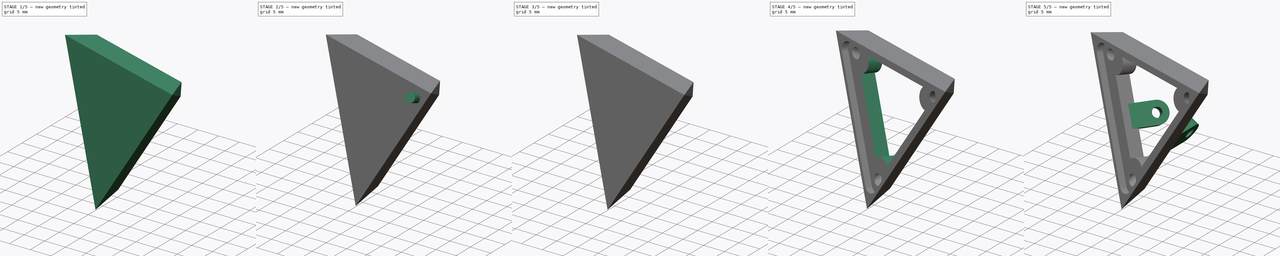
[diagram: build sequence overview — one tinted view per stage of 5, left to right]
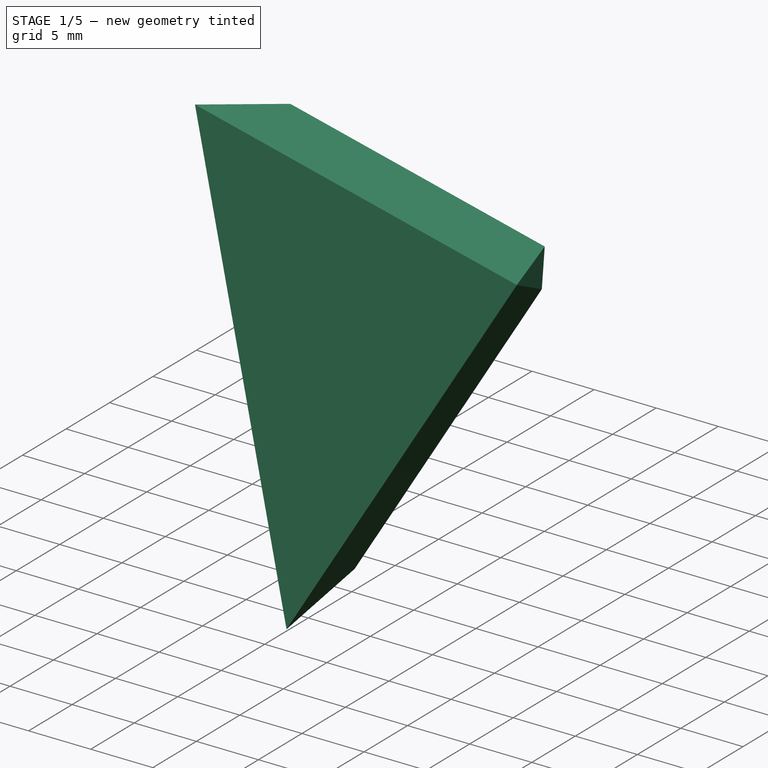
[diagram: stage 1 of 5 — iso view after this stage's code; geometry added in this stage tinted green]
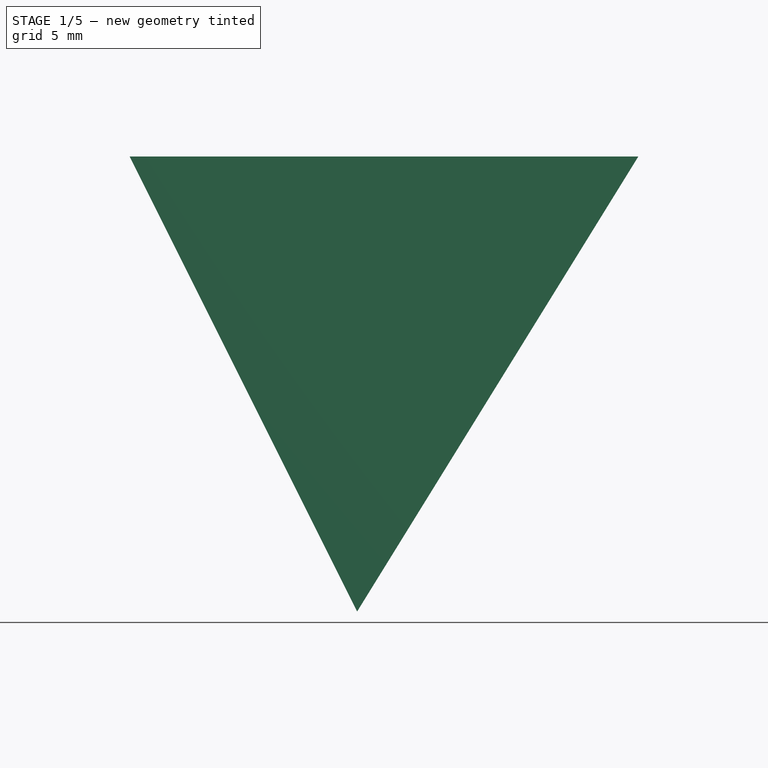
[diagram: stage 1 of 5 — front view after this stage's code; geometry added in this stage tinted green]
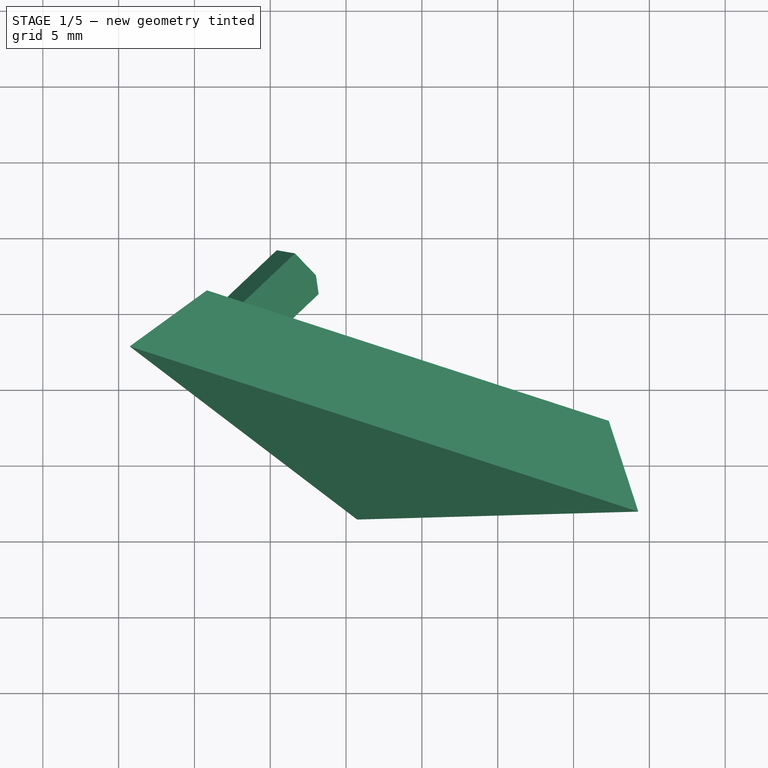
[diagram: stage 1 of 5 — top view after this stage's code; geometry added in this stage tinted green]
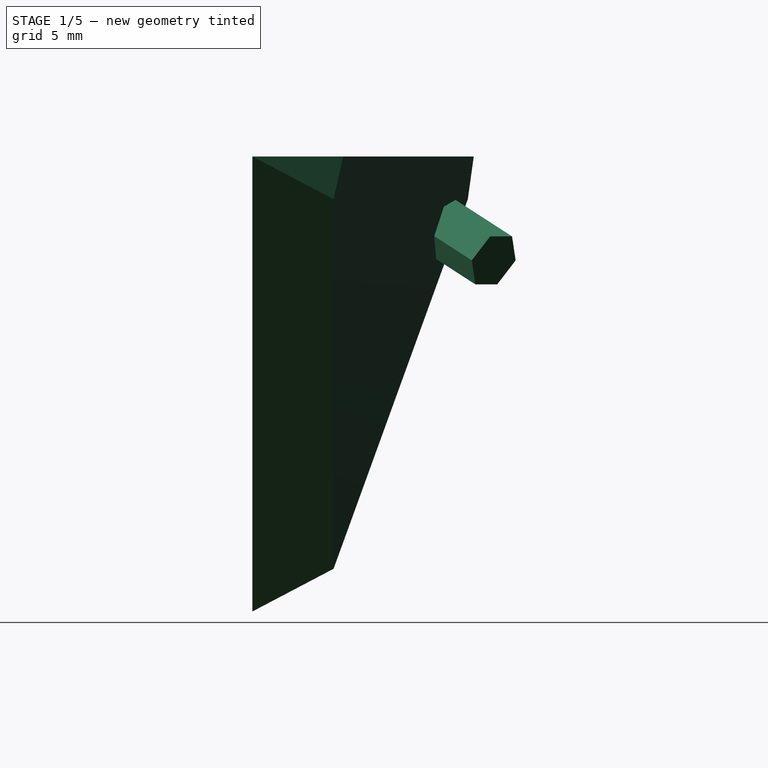
[diagram: stage 1 of 5 — right view after this stage's code; geometry added in this stage tinted green]
FCSTD DOCUMENT  (FreeCAD 0.19R24291 (Git))
Label: base
License: All rights reserved
LicenseURL: http://en.wikipedia.org/wiki/All_rights_reserved
objects: Part::Part2DObjectPython×16, Part::Feature×15, Part::FeaturePython×7, Part::Cut×7, Part::Extrusion×5, Sketcher::SketchObject×4, Part::Compound×2, PartDesign::CoordinateSystem×2, App::DocumentObjectGroup×1, Part::MultiCommon×1, Part::Box×1, Part::Cylinder×1, Part::RegularPolygon×1, Part::MultiFuse×1, PartDesign::FeatureBase×1, PartDesign::Body×1
note: 64 computed .brp shape members not serialized (recipe doc carries the construction recipe); baked Part::Feature solids carry a one-line shape summary decoded from their .brp

FEATURE [Part::FeaturePython] Point  # WARN: FeaturePython — macro-defined, semantics opaque (R4)
  X = 0
  Y = 0
  Z = 0
FEATURE [Part::Part2DObjectPython] Polygon  # Draft 2D object (typed FeaturePython)
  Area = 0
  ChamferSize = 0
  DrawMode = 0
  FacesNumber = 5
  FilletRadius = 0
  MakeFace = false
  Placement = pos=(0,0,15) rot=(0,0,1;0rad)
  Radius = 30
FEATURE [Part::Part2DObjectPython] Polygon001  # Draft 2D object (typed FeaturePython)
  Area = 0
  ChamferSize = 0
  DrawMode = 0
  FacesNumber = 5
  FilletRadius = 0
  MakeFace = false
  Placement = pos=(0,0,-15) rot=(0,0,1;3.14159rad)
  Radius = 30
FEATURE [Part::Part2DObjectPython] Line  # Draft 2D object (typed FeaturePython)
  Area = 0
  ChamferSize = 0
  Closed = false
  End = (-9.27051,-28.5317,-15)
  FilletRadius = 0
  Length = 35.2671
  MakeFace = false
  Placement = pos=(-24.2705,-17.6336,15) rot=(0,0,1;0rad)
  Points = (2) [(0,0,0),(15,-10.8981,-30)]
  Start = (-24.2705,-17.6336,15)
  Subdivisions = 0
FEATURE [Part::Part2DObjectPython] Line001  # Draft 2D object (typed FeaturePython)
  Area = 0
  ChamferSize = 0
  Closed = false
  End = (9.27051,-28.5317,15)
  FilletRadius = 0
  Length = 35.2671
  MakeFace = false
  Placement = pos=(-9.27051,-28.5317,-15) rot=(0,0,1;0rad)
  Points = (2) [(0,0,0),(18.541,-3.55271e-15,30)]
  Start = (-9.27051,-28.5317,-15)
  Subdivisions = 0
FEATURE [Part::Part2DObjectPython] Line002  # Draft 2D object (typed FeaturePython)
  Area = 0
  ChamferSize = 0
  Closed = false
  End = (24.2705,-17.6336,-15)
  FilletRadius = 0
  Length = 35.2671
  MakeFace = false
  Placement = pos=(9.27051,-28.5317,15) rot=(0,0,1;0rad)
  Points = (2) [(0,0,0),(15,10.8981,-30)]
  Start = (9.27051,-28.5317,15)
  Subdivisions = 0
FEATURE [Part::Part2DObjectPython] Line003  # Draft 2D object (typed FeaturePython)
  Area = 0
  ChamferSize = 0
  Closed = false
  End = (5e-16,0,15)
  FilletRadius = 0
  Length = 15
  MakeFace = false
  Placement = pos=(0,0,0) rot=(1,0,0;1.5708rad)
  Points = (2) [(0,0,0),(4.59243e-16,15,3.33067e-15)]
  Start = (0,0,0)
  Subdivisions = 0
FEATURE [Part::Part2DObjectPython] Line004  # Draft 2D object (typed FeaturePython)
  Area = 0
  ChamferSize = 0
  Closed = false
  End = (-5e-16,0,-15)
  FilletRadius = 0
  Length = 15
  MakeFace = false
  Placement = pos=(0,0,0) rot=(1,0,0;1.5708rad)
  Points = (2) [(0,0,0),(-4.59243e-16,-15,-3.33067e-15)]
  Start = (0,0,0)
  Subdivisions = 0
FEATURE [Part::Part2DObjectPython] Line005  # Draft 2D object (typed FeaturePython)
  Area = 0
  ChamferSize = 0
  Closed = false
  End = (0,0,15)
  FilletRadius = 0
  Length = 30
  MakeFace = false
  Placement = pos=(-24.2705,-17.6336,15) rot=(1,0,0;1.5708rad)
  Points = (2) [(0,0,0),(24.2705,3.55271e-15,-17.6336)]
  Start = (-24.2705,-17.6336,15)
  Subdivisions = 0
FEATURE [Part::Part2DObjectPython] Line006  # Draft 2D object (typed FeaturePython)
  Area = 0
  ChamferSize = 0
  Closed = false
  End = (9.27051,-28.5317,15)
  FilletRadius = 0
  Length = 30
  MakeFace = false
  Placement = pos=(0,0,15) rot=(1,0,0;1.5708rad)
  Points = (2) [(0,0,0),(9.27051,-7.10543e-15,28.5317)]
  Start = (0,0,15)
  Subdivisions = 0
FEATURE [Part::Part2DObjectPython] Line007  # Draft 2D object (typed FeaturePython)
  Area = 0
  ChamferSize = 0
  Closed = false
  End = (-9.27051,-28.5317,-15)
  FilletRadius = 0
  Length = 30
  MakeFace = false
  Placement = pos=(0,0,-15) rot=(1,0,0;1.5708rad)
  Points = (2) [(0,0,0),(-9.27051,-5.32907e-15,28.5317)]
  Start = (0,0,-15)
  Subdivisions = 0
FEATURE [Part::Part2DObjectPython] Line008  # Draft 2D object (typed FeaturePython)
  Area = 0
  ChamferSize = 0
  Closed = false
  End = (0,0,-15)
  FilletRadius = 0
  Length = 30
  MakeFace = false
  Placement = pos=(24.2705,-17.6336,-15) rot=(1,0,0;1.5708rad)
  Points = (2) [(0,0,0),(-24.2705,5.32907e-15,-17.6336)]
  Start = (24.2705,-17.6336,-15)
  Subdivisions = 0
FEATURE [Part::Feature] Face
  shape: bbox 45.15 x 37.38 x 2e-07 mm, 1 faces, 0 solids (baked)
FEATURE [Part::Feature] Face001
  shape: bbox 43.54 x 17.24 x 41.86 mm, 1 faces, 0 solids (baked)
FEATURE [Part::Feature] Face002
  shape: bbox 38.84 x 17.98 x 33 mm, 1 faces, 0 solids (baked)
FEATURE [Part::Feature] Face003
  shape: bbox 45.15 x 37.38 x 2e-07 mm, 1 faces, 0 solids (baked)
FEATURE [Part::Compound] Compound
  Links = -> [Face,Face003,Face001,Face002]
FEATURE [Part::FeaturePython] Array  # Draft array (typed FeaturePython)
  Angle = 360
  ArrayType = 1
  Axis = (0,0,1)
  Base = -> Compound
  Center = (0,0,15)
  Count = 5
  ExpandArray = false
  Fuse = false
  IntervalAxis = (0,0,0)
  IntervalX = (50,0,0)
  IntervalY = (0,50,0)
  IntervalZ = (0,0,50)
  NumberCircles = 3
  NumberPolar = 5
  NumberX = 2
  NumberY = 2
  NumberZ = 1
  PlacementList = 5 placements: [(0,0,0),(0,0,0),(0,0,1.77636e-15),(0,0,0),(0,0,0)]
  RadialDistance = 50
  ScaleList = (5) [(1,1,1),(1,1,1),(1,1,1),(1,1,1),(1,1,1)]
  Symmetry = 1
  TangentialDistance = 25
FEATURE [Part::Compound] Compound001
  Links = -> [Array]
FEATURE [Part::Feature] Shell
  shape: bbox 74.36 x 73 x 41.86 mm, 20 faces, 0 solids (baked)
FEATURE [Part::Feature] Solid
  shape: bbox 74.36 x 73 x 41.86 mm, 20 faces (baked)
FEATURE [Part::Feature] Face004
  shape: bbox 34.95 x 37.38 x 33 mm, 1 faces, 0 solids (baked)
FEATURE [Part::Feature] Face005
  shape: bbox 31.86 x 23.15 x 25.65 mm, 1 faces, 0 solids (baked)
FEATURE [Part::Feature] Face006
  shape: bbox 12.17 x 37.45 x 25.65 mm, 1 faces, 0 solids (baked)
FEATURE [Part::Feature] Face007
  shape: bbox 12.17 x 37.45 x 25.65 mm, 1 faces, 0 solids (baked)
FEATURE [Part::Feature] Face008
  shape: bbox 20.4 x 31.38 x 33 mm, 1 faces, 0 solids (baked)
FEATURE [Part::Feature] Face009
  shape: bbox 45.15 x 37.38 x 2e-07 mm, 1 faces, 0 solids (baked)
FEATURE [Part::Feature] Face010
  shape: bbox 38.84 x 17.98 x 33 mm, 1 faces, 0 solids (baked)
FEATURE [Part::Feature] Shell001
  shape: bbox 46.78 x 42.42 x 41.65 mm, 6 faces, 0 solids (baked)
FEATURE [Part::Feature] Solid001
  shape: bbox 46.78 x 42.42 x 41.65 mm, 6 faces (baked)
FEATURE [App::DocumentObjectGroup] Group  label="single_base_triangle_enclosure_elements"
  Group = -> [Face004,Face005,Face006,Face007,Face008,Face009,Face010,Shell001]
FEATURE [Part::MultiCommon] Common  label="single_base_triangle"
  Shapes = -> [Solid,Solid001]
FEATURE [Part::Box] Box  label="Cube"
  AttacherType = Attacher::AttachEngine3D
  AttachmentOffset = pos=(-25,-25,5) rot=(0,0,1;0rad)
  Height = 40
  Length = 50
  MapMode = 13
  Placement = pos=(15.7547,-32.4138,-20.4941) rot=(0.121149,0.764906,0.632647;2.94186rad)
  Support = -> [Polygon,Line007]
  Width = 50
FEATURE [Part::Cut] Cut
  Base = -> Common
  Tool = -> Box
FEATURE [Part::FeaturePython] Point001  # WARN: FeaturePython — macro-defined, semantics opaque (R4)
  Placement = pos=(-16.4896,-15.7751,10.1912) rot=(0,0,1;0rad)
  X = -16.4896
  Y = -15.7751
  Z = 10.1912
FEATURE [Part::FeaturePython] Point002  # WARN: FeaturePython — macro-defined, semantics opaque (R4)
  Placement = pos=(4.06804,-22.4547,10.1912) rot=(0,0,1;0rad)
  X = 4.06804
  Y = -22.4547
  Z = 10.1912
FEATURE [Part::FeaturePython] Point003  # WARN: FeaturePython — macro-defined, semantics opaque (R4)
  Placement = pos=(-7.29596,-22.4547,-8.19619) rot=(0,0,1;0rad)
  X = -7.29596
  Y = -22.4547
  Z = -8.19619
FEATURE [Part::RegularPolygon] RegularPolygon  label="Regular polygon"
  AttacherType = Attacher::AttachEngine3D
  AttachmentOffset = pos=(0,0,-1) rot=(0,0,1;0rad)
  Circumradius = 2
  MapMode = 7
  Placement = pos=(-17.1494,-16.4063,10.5989) rot=(0.337427,0.789774,0.51225;2.71067rad)
  Polygon = 6
  Support = -> [Line009,Point001]
FEATURE [Part::Extrusion] Extrude003
  AttacherType = Attacher::AttachEngine3D
  Base = -> RegularPolygon
  Dir = (0.659786,0.631194,-0.40777)
  DirMode = 2
  FaceMakerClass = Part::FaceMakerBullseye
  LengthFwd = 6
  LengthRev = 0
  Solid = true
  Symmetric = false
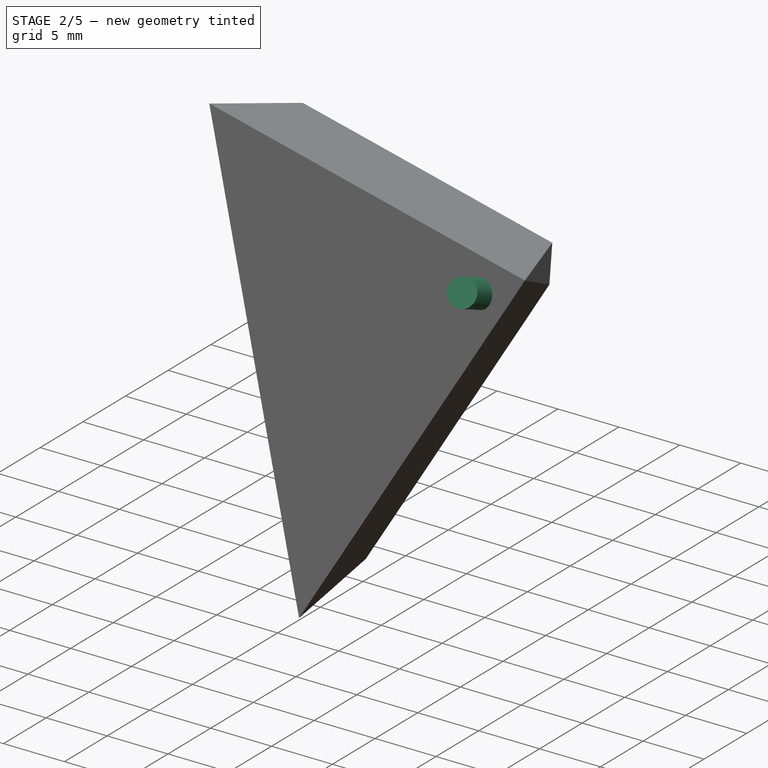
[diagram: stage 2 of 5 — iso view after this stage's code; geometry added in this stage tinted green]
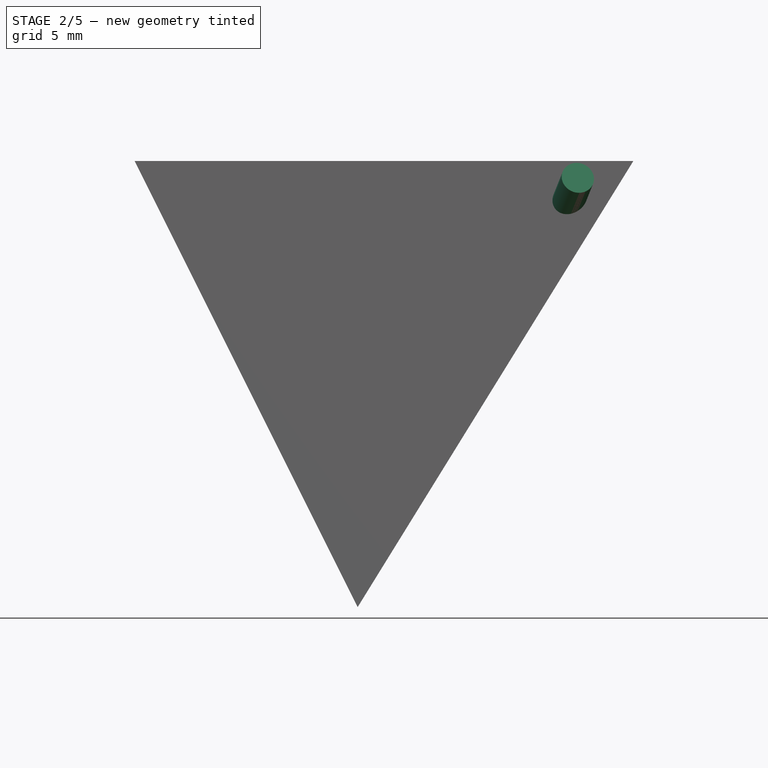
[diagram: stage 2 of 5 — front view after this stage's code; geometry added in this stage tinted green]
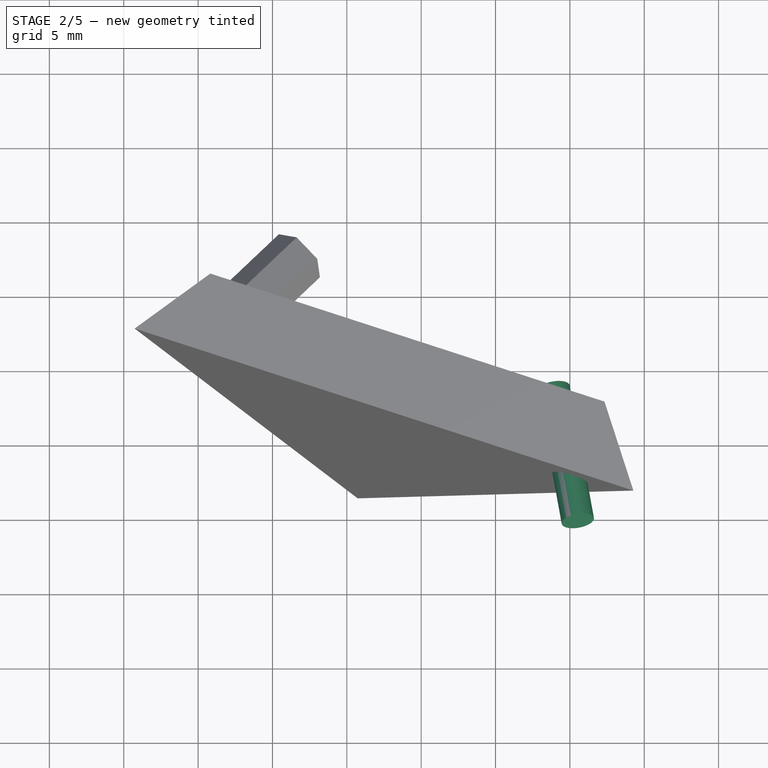
[diagram: stage 2 of 5 — top view after this stage's code; geometry added in this stage tinted green]
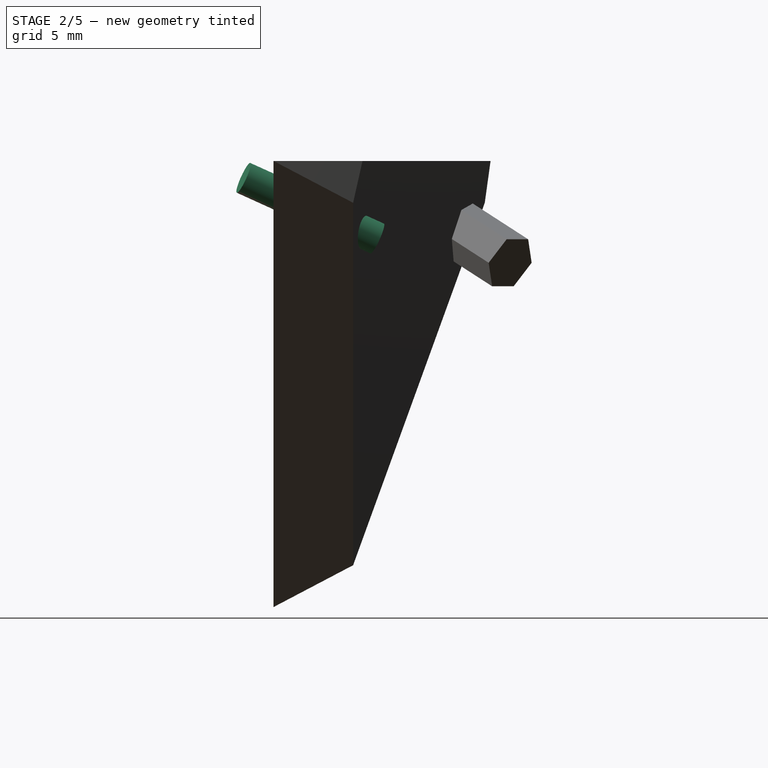
[diagram: stage 2 of 5 — right view after this stage's code; geometry added in this stage tinted green]
FEATURE [Sketcher::SketchObject] Sketch
  ExternalGeometry = -> [Line006,Polygon,Line007]
  FullyConstrained = true
  MapMode = 45
  Placement = pos=(-8.09017,-24.899,5) rot=(0.121149,0.764906,0.632647;2.94186rad)
  Support = -> [Cut]
  sketch-geometry (10):
    g0: LineSegment StartX=13.3034 StartY=7.68074 StartZ=0 EndX=-13.3034 EndY=7.68074 EndZ=0
    g1: LineSegment StartX=-13.3034 StartY=7.68074 StartZ=0 EndX=-1.8e-15 EndY=-15.3615 EndZ=0
    g2: LineSegment StartX=-1.8e-15 StartY=-15.3615 StartZ=0 EndX=13.3034 EndY=7.68074 EndZ=0
    g3: Circle CenterX=0 CenterY=0 CenterZ=0 NormalX=0 NormalY=0 NormalZ=1 AngleXU=0 Radius=15.3615
    g4: LineSegment StartX=0 StartY=0 StartZ=0 EndX=17.6336 EndY=10.1807 EndZ=0
    g5: GeomPoint X=13.3034 Y=7.68074 Z=0
    g6: Circle CenterX=13.3034 CenterY=7.68074 CenterZ=0 NormalX=0 NormalY=0 NormalZ=1 AngleXU=0 Radius=1.1
    g7: Circle CenterX=-13.3034 CenterY=7.68074 CenterZ=0 NormalX=0 NormalY=0 NormalZ=1 AngleXU=0 Radius=1.1
    g8: Circle CenterX=-1.8e-15 CenterY=-15.3615 CenterZ=0 NormalX=0 NormalY=0 NormalZ=1 AngleXU=0 Radius=1e-16
    g9: Circle CenterX=-1.8e-15 CenterY=-15.3615 CenterZ=0 NormalX=0 NormalY=0 NormalZ=1 AngleXU=0 Radius=1.1
  constraints (22):
    c: Coincident(g0,g1)
    c: Coincident(g1,g2)
    c: Coincident(g2,g0)
    c: Equal(g0,g1)
    c: Equal(g0,g2)
    c: PointOnObject(g0,g3)
    c: PointOnObject(g1,g3)
    c: PointOnObject(g2,g3)
    c: Coincident(g3,g-1)
    c: Coincident(g4,g-1)
    c: Coincident(g4,g-4)
    c: PointOnObject(g0,g4)
    c: Coincident(g5,g0)
    c: Coincident(g6,g0)
    c: Distance(g6,g4) = 5
    c: Coincident(g7,g0)
    c: Coincident(g8,g1)
    c: Tangent(g8,g3)
    c: Coincident(g9,g8)
    c: Equal(g6,g9)
    c: Equal(g9,g7)
    c: Radius(g7) = 1.1
FEATURE [Part::Part2DObjectPython] Line009  # Draft 2D object (typed FeaturePython)
  Area = 0
  ChamferSize = 0
  Closed = false
  End = (-26.3914,-25.2478,16.3108)
  FilletRadius = 0
  Length = 40
  MakeFace = false
  Placement = pos=(0,0,0) rot=(0.898521,0.437259,0.038269;1.75031rad)
  Points = (2) [(0,0,0),(-39.3968,2.33419,6.51504)]
  Start = (0,0,0)
  Subdivisions = 0
FEATURE [Part::Cylinder] Cylinder
  Angle = 360
  AttacherType = Attacher::AttachEngine3D
  AttachmentOffset = pos=(0,0,-33) rot=(0,0,1;0rad)
  Height = 10
  MapMode = 7
  Placement = pos=(-21.7729,-20.8294,13.4564) rot=(0.337427,0.789774,0.51225;2.71067rad)
  Radius = 1.1
  Support = -> [Line009]
FEATURE [Part::Part2DObjectPython] Line010  # Draft 2D object (typed FeaturePython)
  Area = 0
  ChamferSize = 0
  Closed = false
  End = (6.51085,-35.9384,16.3108)
  FilletRadius = 0
  Length = 40
  MakeFace = false
  Placement = pos=(0,0,0) rot=(0.491803,0.390548,0.778204;1.24296rad)
  Points = (2) [(0,0,0),(-29.7922,-8.28219,25.3738)]
  Start = (0,0,0)
  Subdivisions = 0
FEATURE [Part::Part2DObjectPython] Line011  # Draft 2D object (typed FeaturePython)
  Area = 0
  ChamferSize = 0
  Closed = false
  End = (-11.6771,-35.9384,-13.1179)
  FilletRadius = 0
  Length = 40
  MakeFace = false
  Placement = pos=(0,0,0) rot=(0.723916,0.282199,0.629531;1.77976rad)
  Points = (2) [(0,0,0),(-39.5605,-3.79306,4.53633)]
  Start = (0,0,0)
  Subdivisions = 0
FEATURE [Part::FeaturePython] Clone  label="Cylinder001"  # Draft clone (typed FeaturePython)
  AttacherType = Attacher::AttachEngine3D
  AttachmentOffset = pos=(0,0,-34) rot=(0,0,1;0rad)
  Fuse = false
  MapMode = 7
  Objects = -> [Cylinder]
  Placement = pos=(5.53422,-30.5476,13.8642) rot=(-0.075171,0.836605,0.542625;3.23903rad)
  Scale = (1,1,1)
  Support = -> [Line010]
FEATURE [Part::Cut] Cut001
  Base = -> Cut
  Tool = -> Cylinder
FEATURE [Sketcher::SketchObject] Sketch001
  ExternalGeometry = -> [Polygon,Line,Line001,Sketch]
  FullyConstrained = false
  MapMode = 2
  Placement = pos=(-8.09017,-24.899,5) rot=(0.121149,0.764906,0.632647;2.94186rad)
  Support = -> [Sketch]
  sketch-geometry (10):
    g0: LineSegment StartX=0 StartY=0 StartZ=0 EndX=17.6336 EndY=10.1807 EndZ=0
    g1: Circle CenterX=0 CenterY=0 CenterZ=0 NormalX=0 NormalY=0 NormalZ=1 AngleXU=0 Radius=9.43573
    g2: LineSegment StartX=0 StartY=0 StartZ=0 EndX=-17.6336 EndY=10.1807 EndZ=0
    g3: LineSegment StartX=9.3e-14 StartY=-20.3615 StartZ=0 EndX=0 EndY=0 EndZ=0
    g4: LineSegment StartX=-13.3034 StartY=9.43573 StartZ=0 EndX=13.3034 EndY=9.43573 EndZ=0
    g5: LineSegment StartX=14.8233 StartY=6.80324 StartZ=0 EndX=1.51987 EndY=-16.239 EndZ=0
    g6: LineSegment StartX=-1.51987 StartY=-16.239 StartZ=0 EndX=-14.8233 EndY=6.80324 EndZ=0
    g7: ArcOfCircle CenterX=-13.3034 CenterY=7.68074 CenterZ=0 NormalX=0 NormalY=0 NormalZ=1 AngleXU=0 Radius=1.75499 StartAngle=1.5708 EndAngle=3.66519
    g8: ArcOfCircle CenterX=13.3034 CenterY=7.68074 CenterZ=0 NormalX=0 NormalY=0 NormalZ=1 AngleXU=0 Radius=1.75499 StartAngle=5.75959 EndAngle=7.85398
    g9: ArcOfCircle CenterX=7.02e-14 CenterY=-15.3615 CenterZ=0 NormalX=0 NormalY=0 NormalZ=1 AngleXU=0 Radius=1.75499 StartAngle=3.66519 EndAngle=5.75959
  constraints (21):
    c: Coincident(g0,g-1)
    c: Coincident(g0,g-4)
    c: Coincident(g1,g-1)
    c: Coincident(g2,g-1)
    c: Coincident(g2,g-5)
    c: Coincident(g3,g-5)
    c: Coincident(g3,g-1)
    c: Horizontal(g4)
    c: Tangent(g6,g1)
    c: Tangent(g6,g7) = 1.5708
    c: Tangent(g4,g7) = 1.5708
    c: Tangent(g4,g8) = 1.5708
    c: Tangent(g5,g8) = 1.5708
    c: PointOnObject(g8,g0)
    c: Tangent(g5,g9) = 1.5708
    c: Tangent(g6,g9) = 1.5708
    c: PointOnObject(g9,g3)
    c: Equal(g9,g8)
    c: Equal(g8,g7)
    c: Parallel(g5,g-4)
    c: Coincident(g7,g-6)
FEATURE [Part::Extrusion] Extrude
  Base = -> Sketch001
  Dir = (0.303531,0.934172,-0.187592)
  DirMode = 2
  FaceMakerClass = Part::FaceMakerBullseye
  LengthFwd = 1.6
  LengthRev = 0
  Solid = true
  Symmetric = false
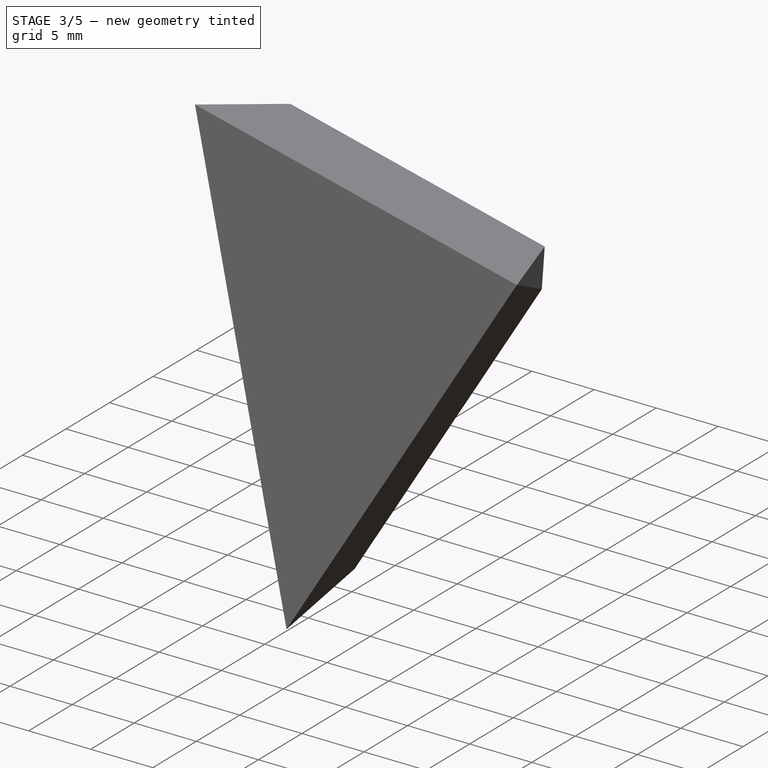
[diagram: stage 3 of 5 — iso view after this stage's code; geometry added in this stage tinted green]
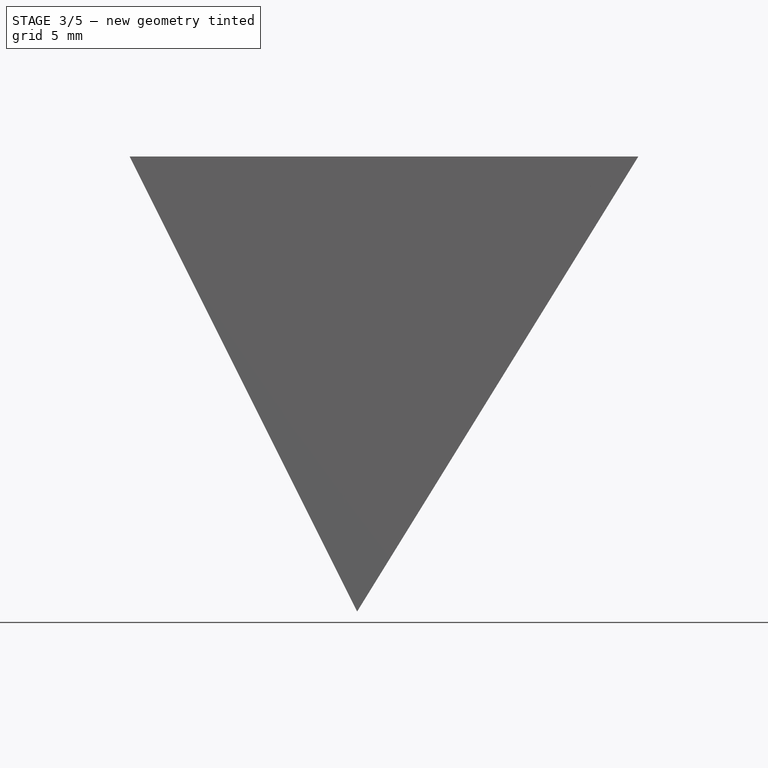
[diagram: stage 3 of 5 — front view after this stage's code; geometry added in this stage tinted green]
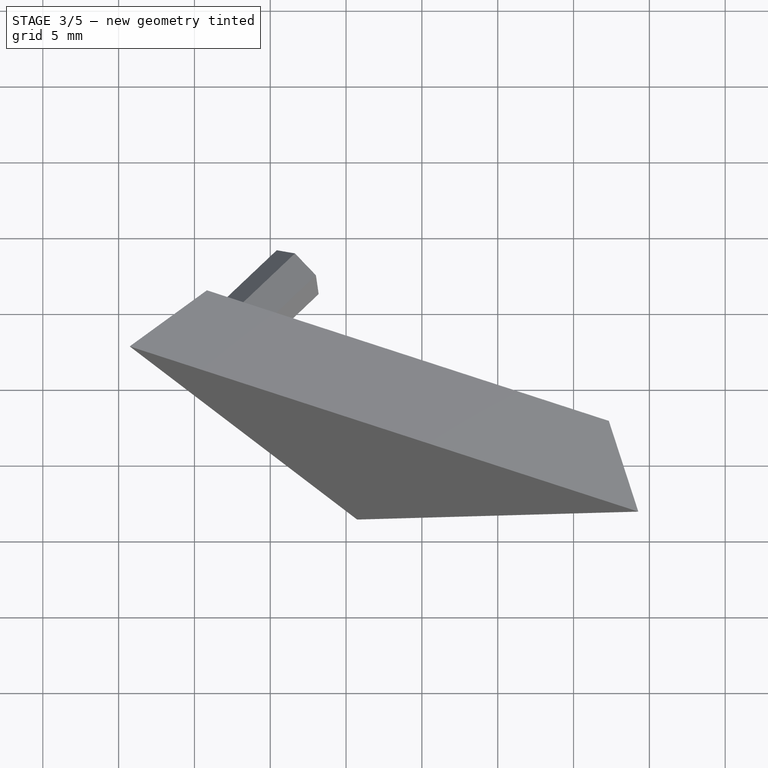
[diagram: stage 3 of 5 — top view after this stage's code; geometry added in this stage tinted green]
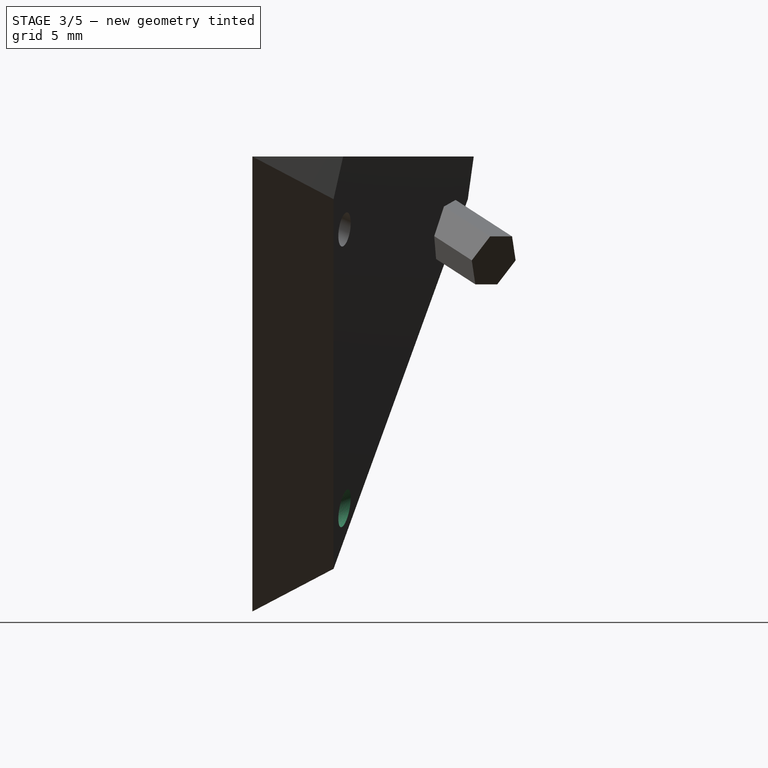
[diagram: stage 3 of 5 — right view after this stage's code; geometry added in this stage tinted green]
FEATURE [Part::FeaturePython] Clone001  label="Cylinder002"  # Draft clone (typed FeaturePython)
  AttacherType = Attacher::AttachEngine3D
  AttachmentOffset = pos=(0,0,-33) rot=(0,0,1;0rad)
  Fuse = false
  MapMode = 7
  Objects = -> [Clone]
  Placement = pos=(-9.6336,-29.6492,-10.8223) rot=(0.091427,0.57725,0.811433;2.88596rad)
  Scale = (1,1,1)
  Support = -> [Line011]
FEATURE [Part::Cut] Cut002
  Base = -> Cut001
  Tool = -> Clone
FEATURE [Part::Cut] Cut003
  Base = -> Cut002
  Tool = -> Clone001
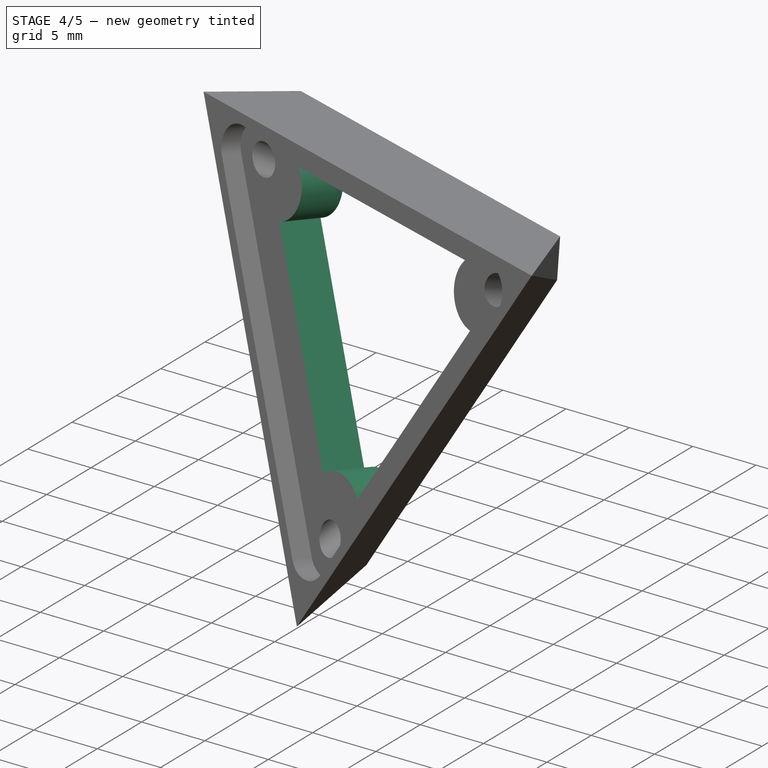
[diagram: stage 4 of 5 — iso view after this stage's code; geometry added in this stage tinted green]
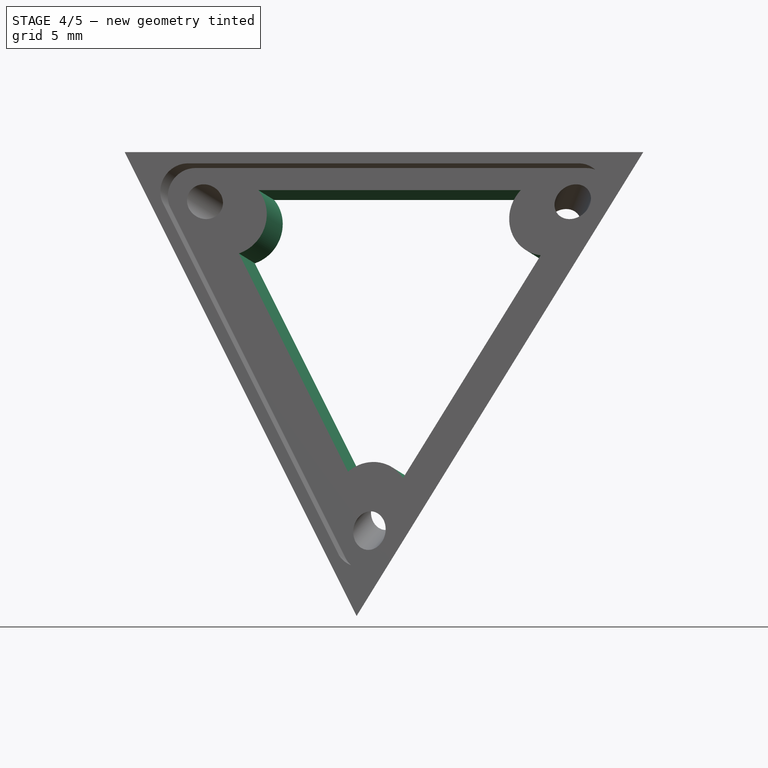
[diagram: stage 4 of 5 — front view after this stage's code; geometry added in this stage tinted green]
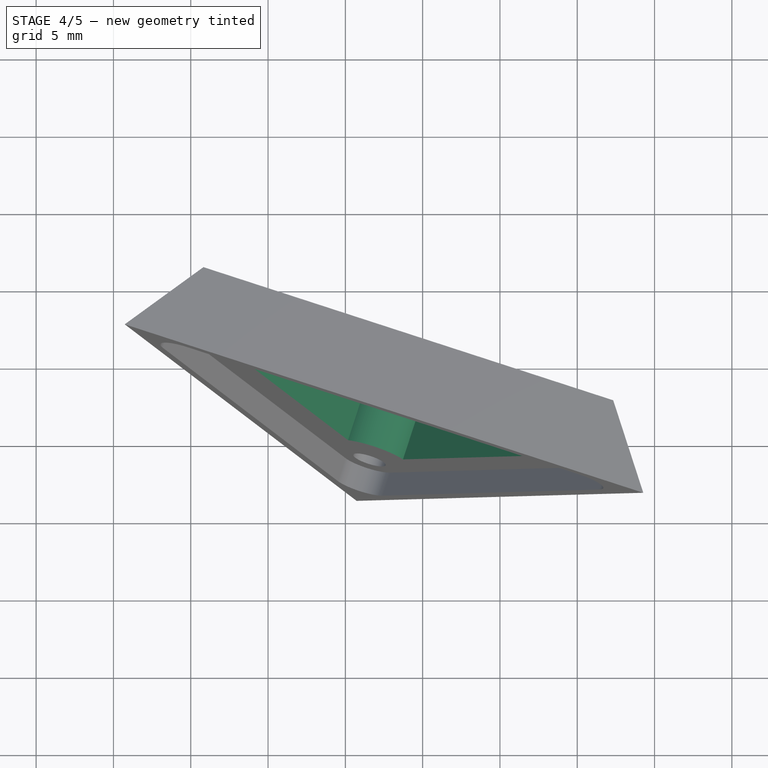
[diagram: stage 4 of 5 — top view after this stage's code; geometry added in this stage tinted green]
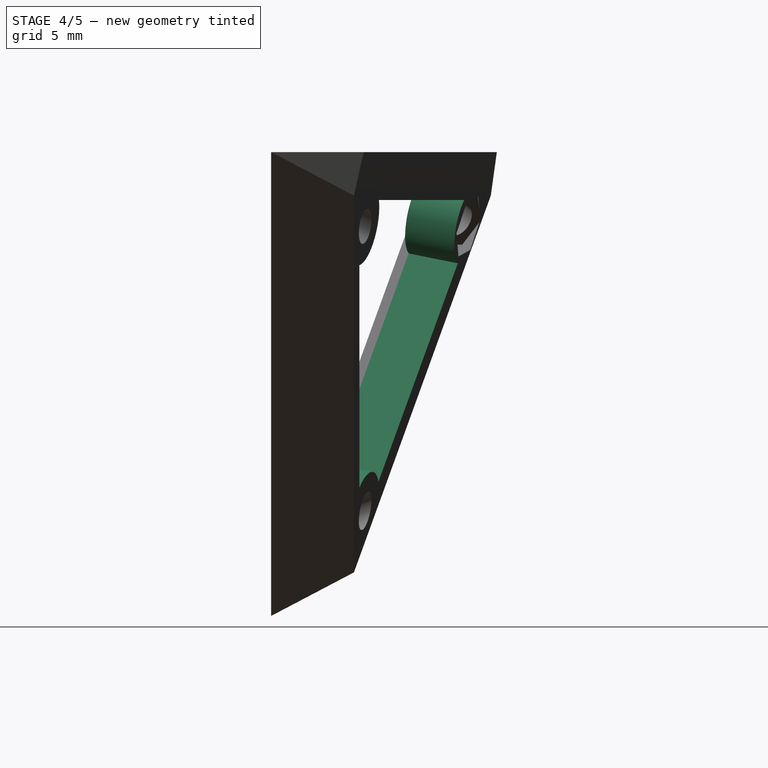
[diagram: stage 4 of 5 — right view after this stage's code; geometry added in this stage tinted green]
FEATURE [Part::Cut] Cut004
  Base = -> Cut003
  Tool = -> Extrude
FEATURE [Sketcher::SketchObject] Sketch002
  ExternalGeometry = -> [Cut004]
  FullyConstrained = false
  MapMode = 5
  Placement = pos=(-6.57251,-20.2281,4.06204) rot=(0.098021,0.769864,0.630636;2.9034rad)
  Support = -> [Cut004]
  sketch-geometry (9):
    g0: LineSegment StartX=-11.1674 StartY=5.57079 StartZ=0 EndX=10.4082 EndY=6.88587 EndZ=0
    g1: LineSegment StartX=10.4082 StartY=6.88587 StartZ=0 EndX=0.759265 EndY=-12.4567 EndZ=0
    g2: LineSegment StartX=0.759265 StartY=-12.4567 StartZ=0 EndX=-11.1674 EndY=5.57079 EndZ=0
    g3: LineSegment StartX=-10.7482 StartY=3.04562 StartZ=0 EndX=-1.4008 EndY=-11.0832 EndZ=0
    g4: LineSegment StartX=2.33356 StartY=-10.4383 StartZ=0 EndX=9.74261 EndY=4.41418 EndZ=0
    g5: LineSegment StartX=8.43088 StartY=8.51148 StartZ=0 EndX=-9.40221 EndY=7.42451 EndZ=0
    g6: ArcOfCircle CenterX=-11.1674 CenterY=5.57079 CenterZ=0 NormalX=0 NormalY=0 NormalZ=1 AngleXU=0 Radius=2.55973 StartAngle=4.8769 EndAngle=7.09304
    g7: ArcOfCircle CenterX=10.4082 CenterY=6.88587 CenterZ=0 NormalX=0 NormalY=0 NormalZ=1 AngleXU=0 Radius=2.55973 StartAngle=2.4535 EndAngle=4.44936
    g8: ArcOfCircle CenterX=0.759265 CenterY=-12.4567 CenterZ=0 NormalX=0 NormalY=0 NormalZ=1 AngleXU=0 Radius=2.55973 StartAngle=0.90838 EndAngle=2.57524
  constraints (20):
    c: Coincident(g0,g-4)
    c: Coincident(g0,g-5)
    c: Coincident(g1,g0)
    c: Coincident(g1,g-3)
    c: Coincident(g2,g1)
    c: Coincident(g2,g0)
    c: Coincident(g6,g0)
    c: Coincident(g6,g5)
    c: Coincident(g6,g3)
    c: Coincident(g7,g0)
    c: Coincident(g7,g5)
    c: Coincident(g7,g4)
    c: Coincident(g8,g1)
    c: Coincident(g8,g3)
    c: Parallel(g3,g2)
    c: Parallel(g0,g5)
    c: Equal(g6,g7)
    c: Equal(g7,g8)
    c: Coincident(g8,g4)
    c: Parallel(g4,g1)
FEATURE [Part::Extrusion] Extrude001
  Base = -> Sketch002
  Dir = (0.303531,0.934172,-0.187592)
  DirMode = 2
  FaceMakerClass = Part::FaceMakerBullseye
  LengthFwd = 10
  LengthRev = 0
  Reversed = true
  Solid = true
  Symmetric = false
FEATURE [Part::Cut] Cut005
  Base = -> Cut004
  Tool = -> Extrude001
FEATURE [Part::Cut] Cut006
  Base = -> Cut005
  Tool = -> Extrude003
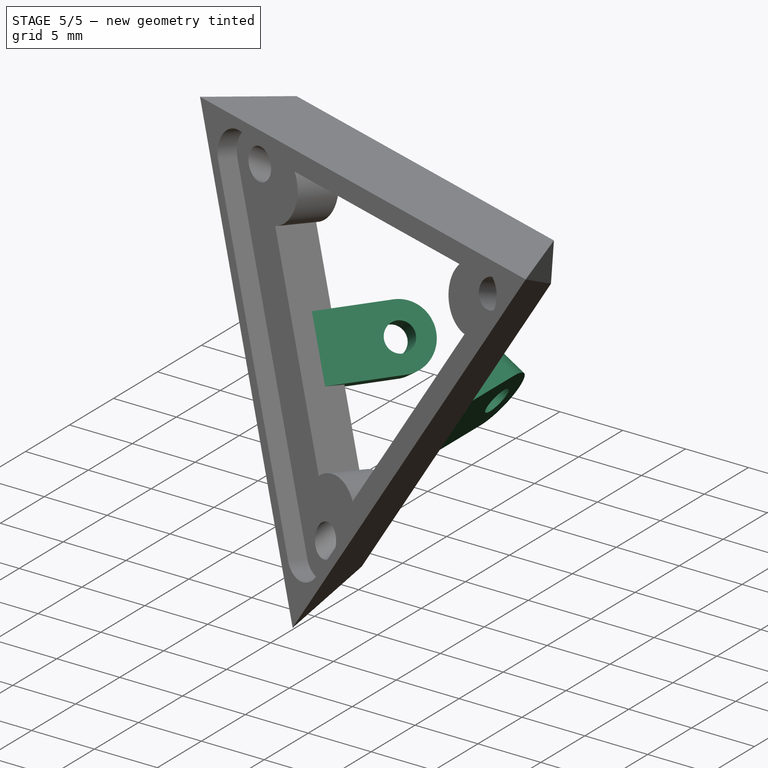
[diagram: stage 5 of 5 — iso view after this stage's code; geometry added in this stage tinted green]
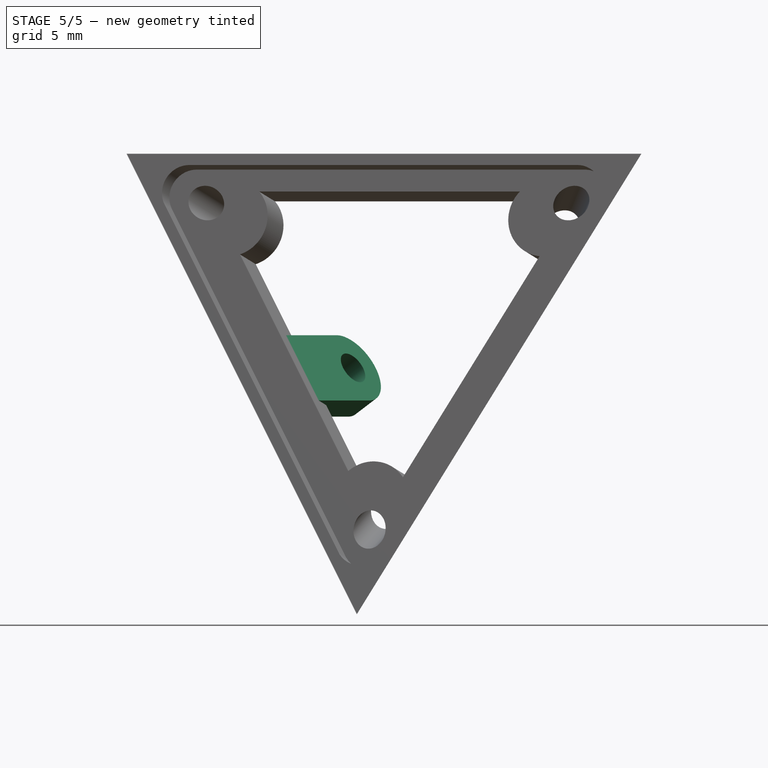
[diagram: stage 5 of 5 — front view after this stage's code; geometry added in this stage tinted green]
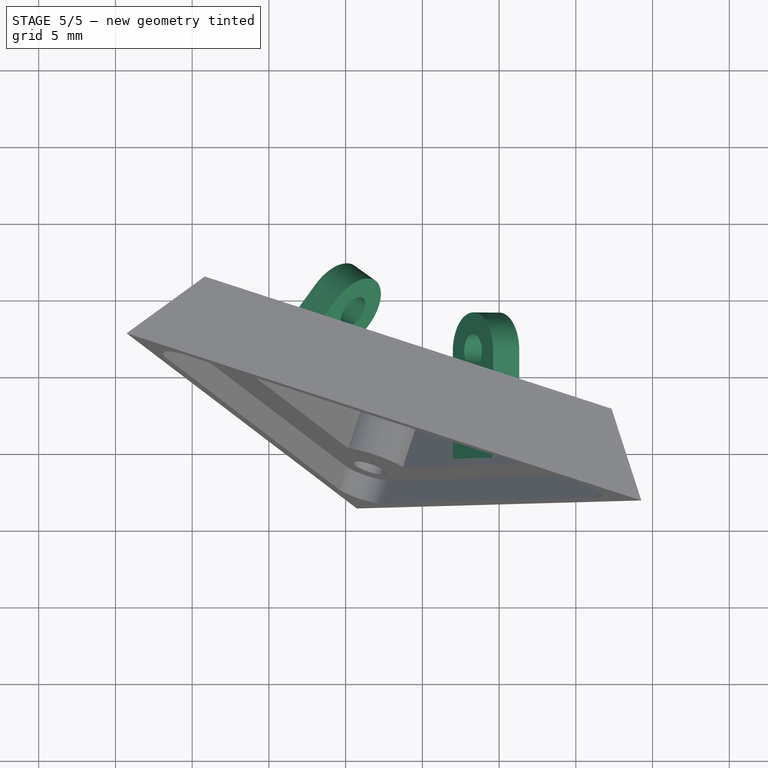
[diagram: stage 5 of 5 — top view after this stage's code; geometry added in this stage tinted green]
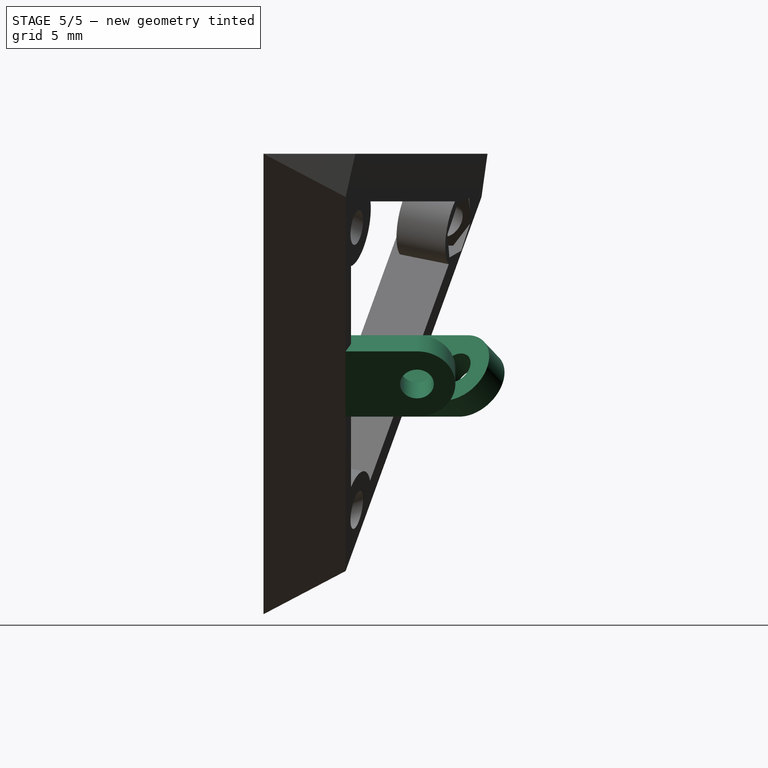
[diagram: stage 5 of 5 — right view after this stage's code; geometry added in this stage tinted green]
FEATURE [Part::Part2DObjectPython] Line012  # Draft 2D object (typed FeaturePython)
  Area = 0
  ChamferSize = 0
  Closed = false
  End = (-16.7705,-23.0826,0)
  FilletRadius = 0
  Length = 28.5317
  MakeFace = false
  Points = (2) [(0,0,0),(-16.7705,-23.0826,0)]
  Start = (0,0,0)
  Subdivisions = 0
FEATURE [Sketcher::SketchObject] Sketch003
  ExternalGeometry = -> [Cut006,Point]
  FullyConstrained = false
  MapMode = 13
  Placement = pos=(-11.1803,-15.3884,2e-16) rot=(0.690921,0.352042,0.631423;1.35793rad)
  Support = -> [Cut006,Line012]
  sketch-geometry (9):
    g0: LineSegment StartX=-9.51057 StartY=17.6336 StartZ=0 EndX=-9.51057 EndY=-17.6336 EndZ=0
    g1: LineSegment StartX=-6.51057 StartY=-2.5 StartZ=0 EndX=0.489435 EndY=-2.5 EndZ=0
    g2: LineSegment StartX=0.489435 StartY=-2.5 StartZ=0 EndX=0.489435 EndY=2.5 EndZ=0
    g3: LineSegment StartX=0.489435 StartY=2.5 StartZ=0 EndX=-6.51057 EndY=2.5 EndZ=0
    g4: LineSegment StartX=-6.51057 StartY=2.5 StartZ=0 EndX=-6.51057 EndY=-2.5 EndZ=0
    g5: LineSegment StartX=19.0211 StartY=-2e-15 StartZ=0 EndX=-9.51057 EndY=-2e-15 EndZ=0
    g6: ArcOfCircle CenterX=0.489435 CenterY=-1.8e-15 CenterZ=0 NormalX=0 NormalY=0 NormalZ=1 AngleXU=0 Radius=2.5 StartAngle=4.71239 EndAngle=7.85398
    g7: Circle CenterX=0.489435 CenterY=-1.8e-15 CenterZ=0 NormalX=0 NormalY=0 NormalZ=1 AngleXU=0 Radius=1.1
    g8: LineSegment StartX=-6.51057 StartY=-2.4863 StartZ=0 EndX=-9.51057 EndY=-2.4863 EndZ=0
  constraints (24):
    c: Coincident(g0,g-4)
    c: Coincident(g0,g-3)
    c: Coincident(g1,g2)
    c: Coincident(g2,g3)
    c: Coincident(g3,g4)
    c: Coincident(g4,g1)
    c: Horizontal(g1)
    c: Horizontal(g3)
    c: Vertical(g2)
    c: Vertical(g4)
    c: Coincident(g5,g-5)
    c: PointOnObject(g5,g0)
    c: Symmetric(g3,g1,g5)
    c: Coincident(g6,g2)
    c: Coincident(g6,g1)
    c: PointOnObject(g6,g2)
    c: Coincident(g7,g6)
    c: Radius(g7) = 1.1
    c: Radius(g6) = 2.5
    c: DistanceX(g3,g3) = 7
    c: PointOnObject(g8,g4)
    c: PointOnObject(g8,g0)
    c: Horizontal(g8)
    c: Distance(g8) = 3
FEATURE [Part::Extrusion] Extrude004
  Base = -> Sketch003
  Dir = (0.688191,-0.5,0.525731)
  DirMode = 2
  FaceMakerClass = Part::FaceMakerBullseye
  LengthFwd = 2
  LengthRev = 0
  Solid = true
  Symmetric = false
FEATURE [Part::Part2DObjectPython] Line013  # Draft 2D object (typed FeaturePython)
  Area = 0
  ChamferSize = 0
  Closed = false
  End = (-5.3e-15,-28.5317,0)
  FilletRadius = 0
  Length = 28.5317
  MakeFace = false
  Points = (2) [(0,0,0),(-6.2026e-15,-28.5317,0)]
  Start = (0,0,0)
  Subdivisions = 0
FEATURE [Part::Extrusion] Extrude005
  Base = -> Sketch003
  Dir = (0.688191,-0.5,0.525731)
  DirMode = 2
  FaceMakerClass = Part::FaceMakerBullseye
  LengthFwd = 2
  LengthRev = 0
  Placement = pos=(0,0,0) rot=(0.303531,0.934172,-0.187592;4.18879rad)
  Solid = true
  Symmetric = false
FEATURE [Part::MultiFuse] Fusion
  Shapes = -> [Cut006,Extrude004,Extrude005]
FEATURE [PartDesign::FeatureBase] BaseFeature
  BaseFeature = -> Fusion
FEATURE [PartDesign::CoordinateSystem] Local_CS
  AttacherType = Attacher::AttachEngine3D
  MapMode = 11
  Placement = pos=(-2.049e-13,-18.5317,1.259e-13) rot=(-0.486965,0,0.873422;3.14159rad)
  Support = -> [BaseFeature]
FEATURE [PartDesign::CoordinateSystem] Local_CS001
  AttacherType = Attacher::AttachEngine3D
  MapMode = 11
  Placement = pos=(-10.8927,-14.9925,-9e-16) rot=(0.480981,-0.15628,0.86269;2.59501rad)
  Support = -> [BaseFeature]
FEATURE [PartDesign::Body] Body
  BaseFeature = -> Fusion
  Group = -> [BaseFeature,Local_CS,Local_CS001]
  Origin = -> Origin
  Tip = -> BaseFeature
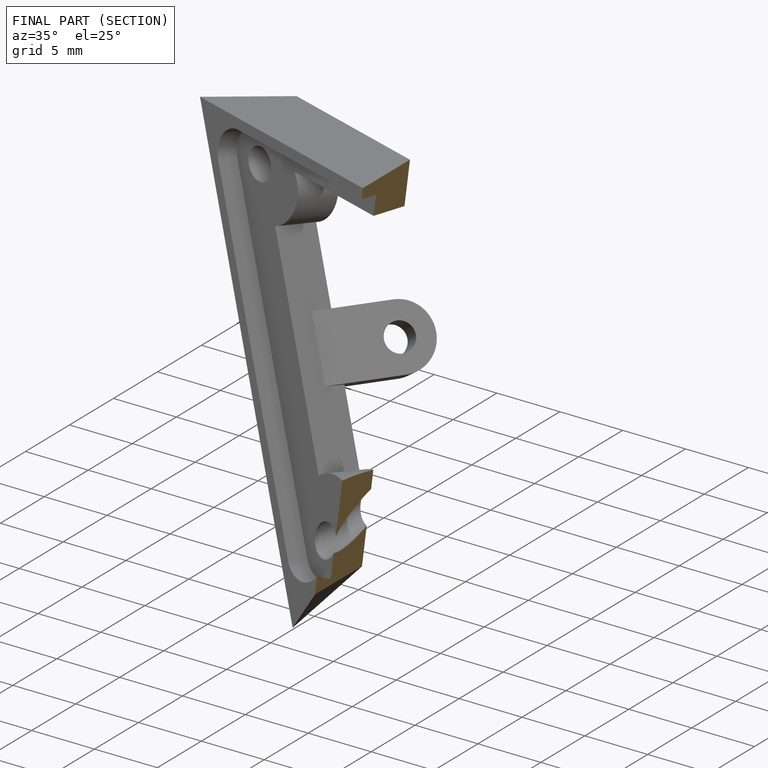
[diagram: finished part — half-section view (interior)]
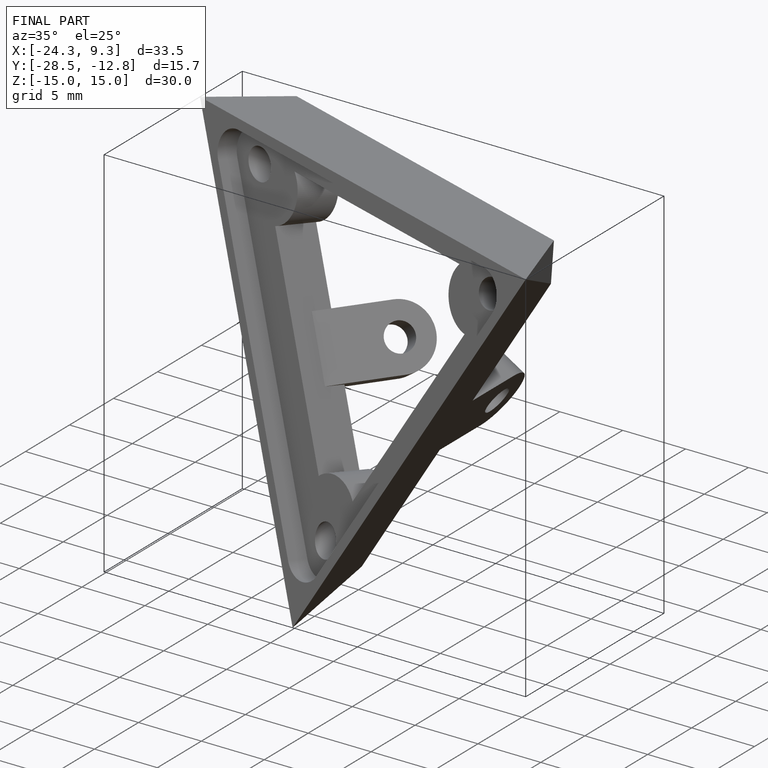
[diagram: finished part — iso view with bounding-box wireframe]
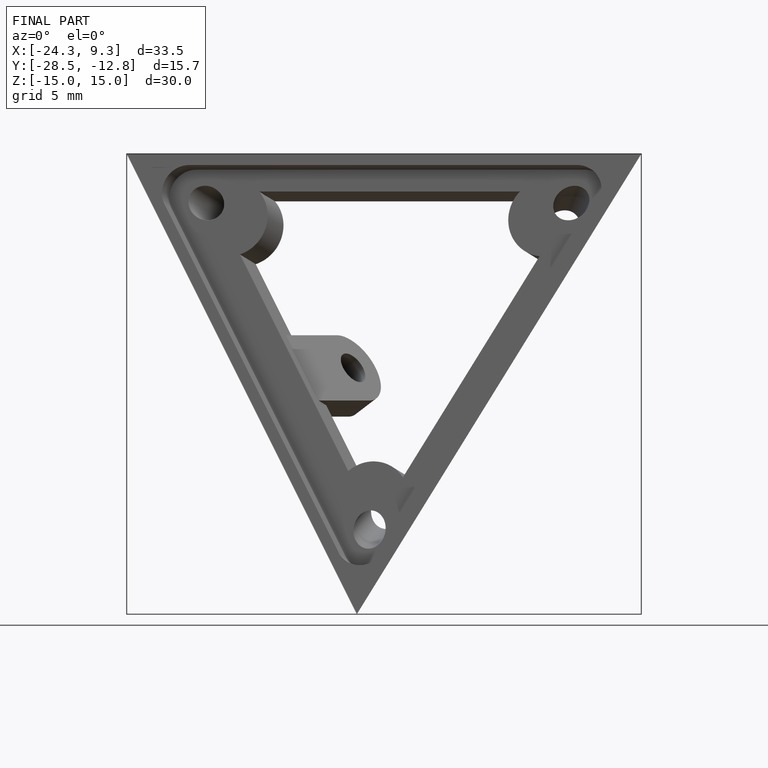
[diagram: finished part — front view with bounding-box wireframe]
